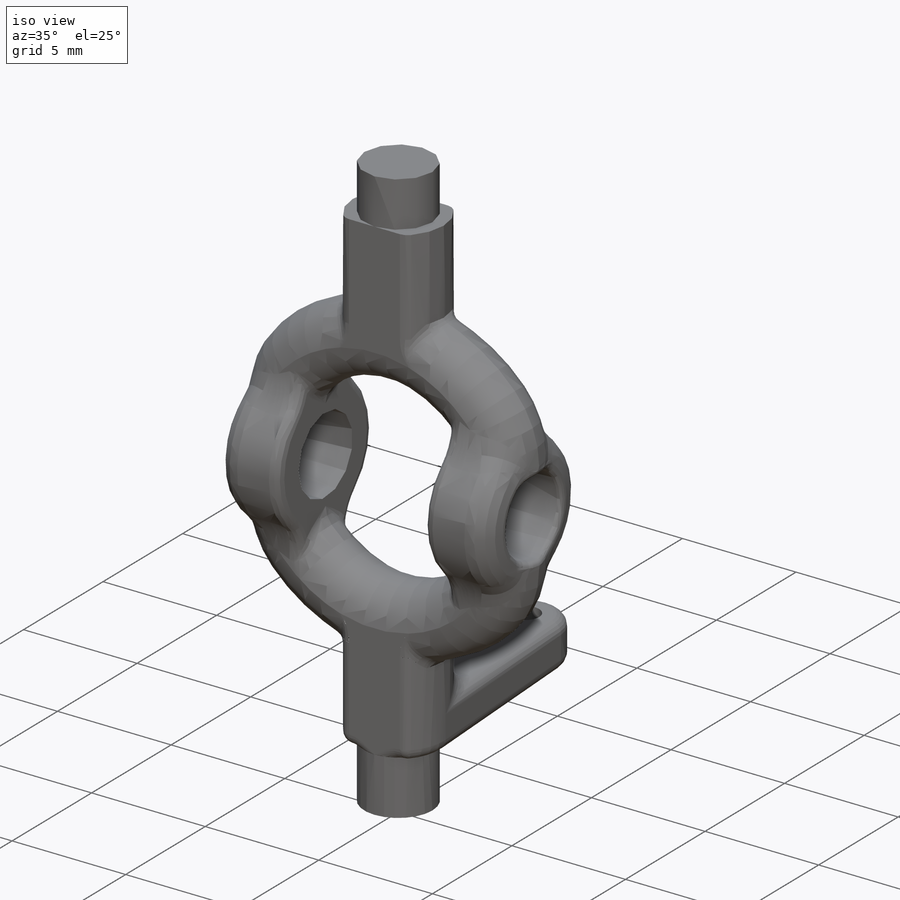
[diagram: iso view]
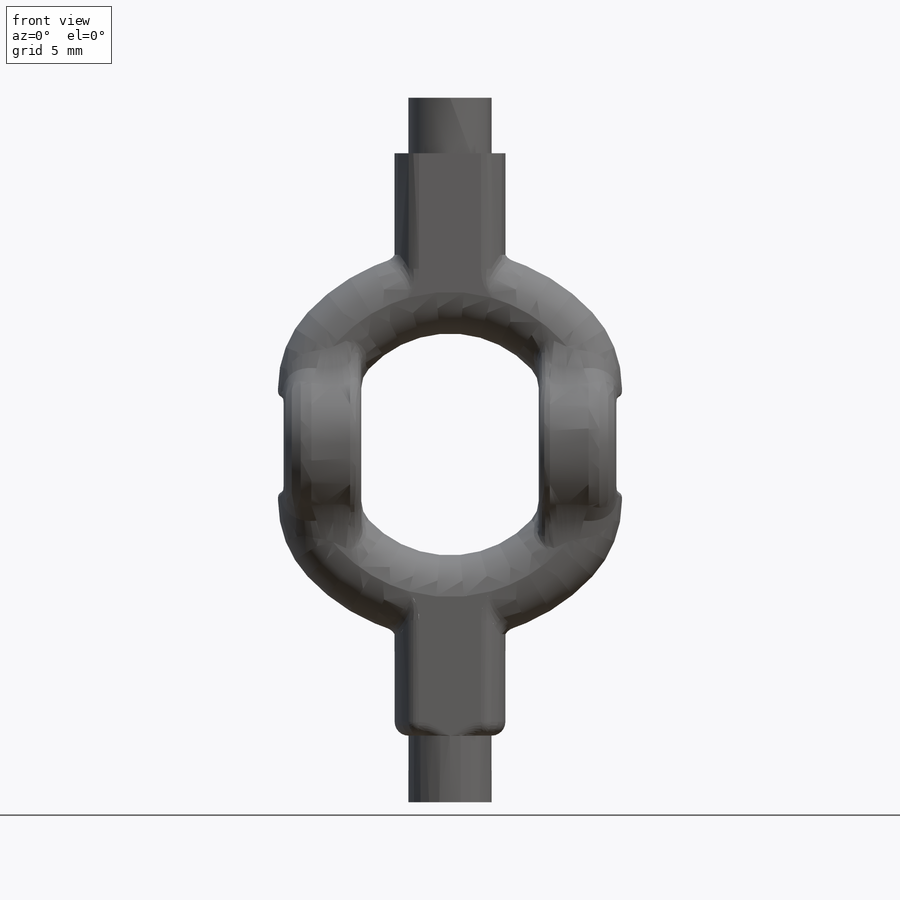
[diagram: front view]
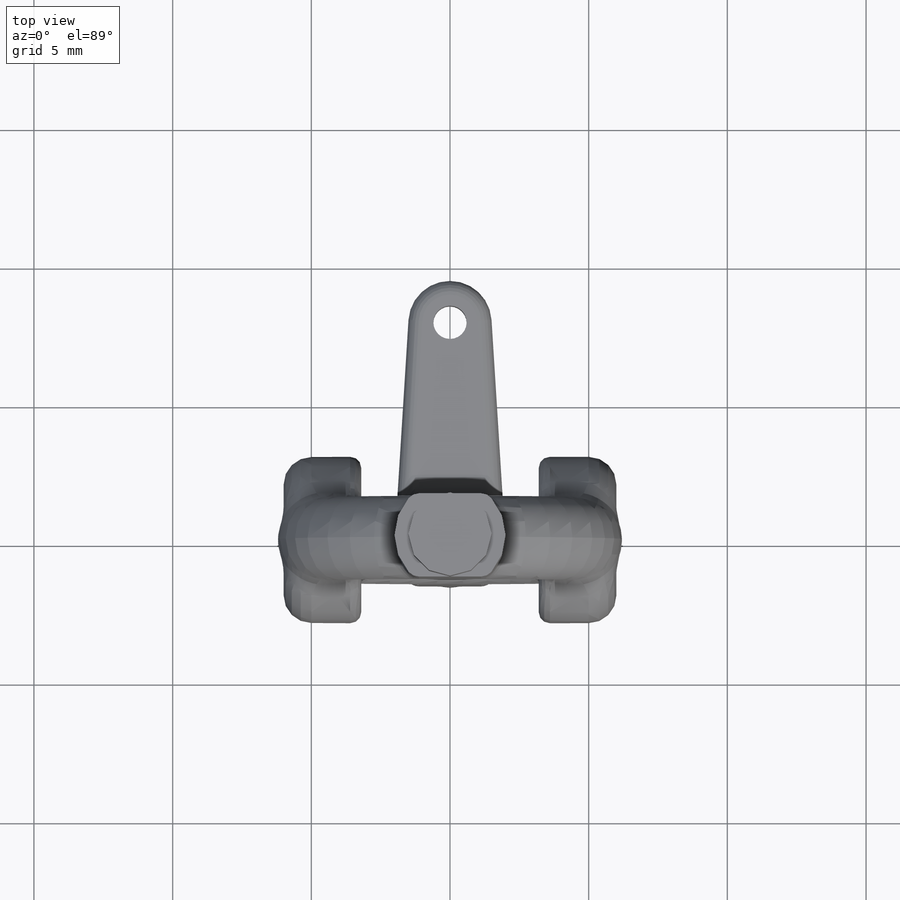
[diagram: top view]
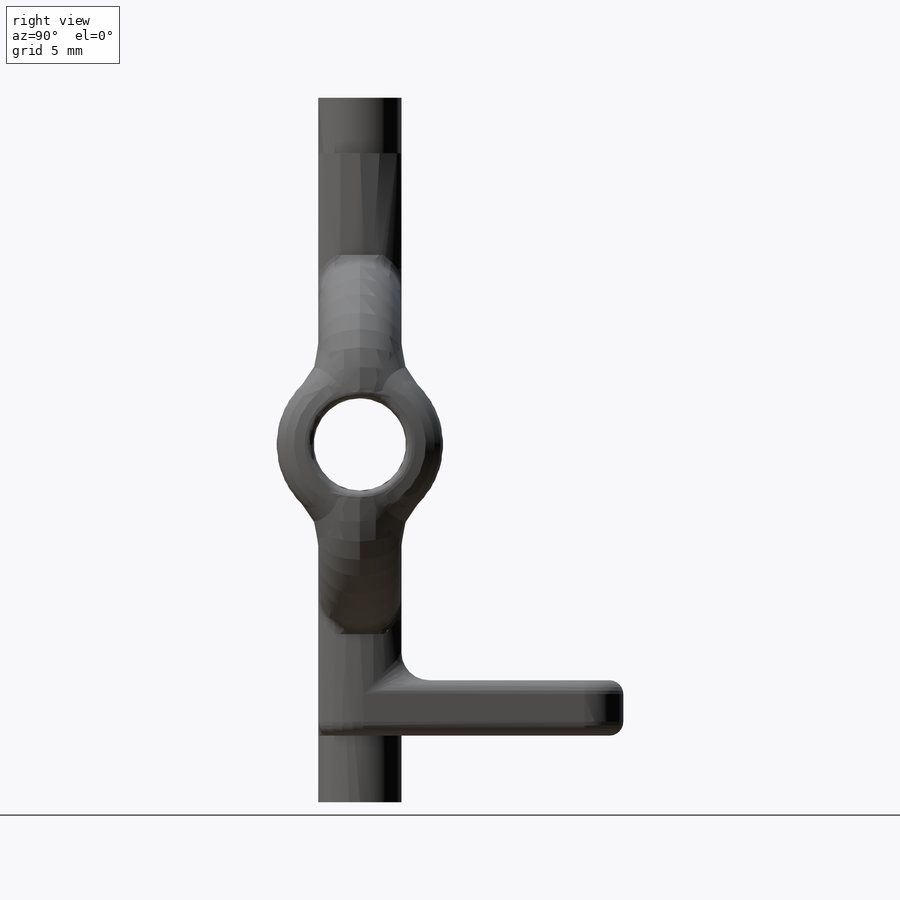
[diagram: right view]
SOLIDWORKS PART (.sldprt)
format: sldprt  version: not decoded by parser v0  size: 3,085,824 bytes
history: native  units: mm
features: sketch x35, move_body x4, extrude x2, fillet x2, material x1, boolean_combine x1, cut_extrude x1, plane x1 + 4 further entries (+32 scaffold rows collapsed; 24 parser-record rows omitted)
feature tree (107):
  scaffold x32  (default folders/planes/origin — collapsed)
  material  "Material <not specified>"
  sketch  "Sketch1-Part4"  dims[c1.D2=3.0mm c1.D3=1.0mm c1.D5=4.0mm c1.D6=3.0mm c1.D1=0.2mm c2.D2=0.75mm c2.D4=3.0mm]
  sketch  "Sketch2-Part4"  dims[D1=3.0mm]
  sketch  "Sketch3-Part4"  dims[D1=0.5mm]
  sketch  "Sketch4-Part4"  dims[D2=1.5mm D1=0.0mm]
  sketch  "Sketch5-Part4"  dims[D1=0.2mm]
  sketch  "Sketch7-Part4"
  sketch  "Sketch8-Part4"
  sketch  "Sketch10-Part4"  dims[D1=0.0mm]
  "Part4"
  parser-record x24  (decoder bookkeeping rows leaked as tree rows — omitted from the tree; the rows remain in map.json)
  move_body  "Body-Move/Copy2"
  sketch  "Sketch1-Part42"  dims[c1.D2=3.0mm c1.D3=1.0mm c1.D5=4.0mm c1.D6=3.0mm c1.D1=0.2mm c2.D2=0.75mm c2.D4=3.0mm]
  sketch  "Sketch2-Part42"  dims[D1=3.0mm]
  sketch  "Sketch3-Part42"  dims[D1=0.5mm]
  sketch  "Sketch4-Part42"  dims[D2=1.5mm D1=0.0mm]
  sketch  "Sketch5-Part42"  dims[D1=0.2mm]
  sketch  "Sketch7-Part42"
  sketch  "Sketch8-Part42"
  sketch  "Sketch10-Part42"  dims[D1=0.0mm]
  "Part42"
  move_body  "Body-Move/Copy4"
  sketch  "Sketch1-Part43"  dims[c1.D2=3.0mm c1.D3=1.0mm c1.D5=4.0mm c1.D6=3.0mm c1.D1=0.2mm c2.D2=0.75mm c2.D4=3.0mm]
  sketch  "Sketch2-Part43"  dims[D1=3.0mm]
  sketch  "Sketch3-Part43"  dims[D1=0.5mm]
  sketch  "Sketch4-Part43"  dims[D2=1.5mm D1=0.0mm]
  sketch  "Sketch5-Part43"  dims[D1=0.2mm]
  sketch  "Sketch7-Part43"
  sketch  "Sketch8-Part43"
  sketch  "Sketch10-Part43"  dims[D1=0.0mm]
  "Part43"
  move_body  "Body-Move/Copy6"
  sketch  "Sketch1-Part44"  dims[c1.D2=3.0mm c1.D3=1.0mm c1.D5=4.0mm c1.D6=3.0mm c1.D1=0.2mm c2.D2=0.75mm c2.D4=3.0mm]
  sketch  "Sketch2-Part44"  dims[D1=3.0mm]
  sketch  "Sketch3-Part44"  dims[D1=0.5mm]
  sketch  "Sketch4-Part44"  dims[D2=1.5mm D1=0.0mm]
  sketch  "Sketch5-Part44"  dims[D1=0.2mm]
  sketch  "Sketch7-Part44"
  sketch  "Sketch8-Part44"
  sketch  "Sketch10-Part44"  dims[D1=0.0mm]
  "Part44"
  move_body  "Body-Move/Copy8"
  boolean_combine  "Combine1"
  sketch  "Sketch1"  dims[D1=0.0mm]
  extrude  "Boss-Extrude1"  Depth=0.4mm
  sketch  "Sketch2"  dims[D1=5.0mm D2=3.0mm D3=8.0mm]
  extrude  "Boss-Extrude2"  Depth=2mm
  fillet  "Fillet1"  Radius=0.5mm
  sketch  "Sketch3"  dims[D1=1.2mm]
  cut_extrude  "Cut-Extrude1"  [1 undecoded]
  plane  "Plane1"
  fillet  "Fillet2"  Radius=1mm
decode coverage: 31 of 45 modeling features carry decoded parameters; 4 rows unclassified (native names shown)
note: 1 parameter value undecoded
note: suppression state not decoded; provenance and decode notes live in map.json
